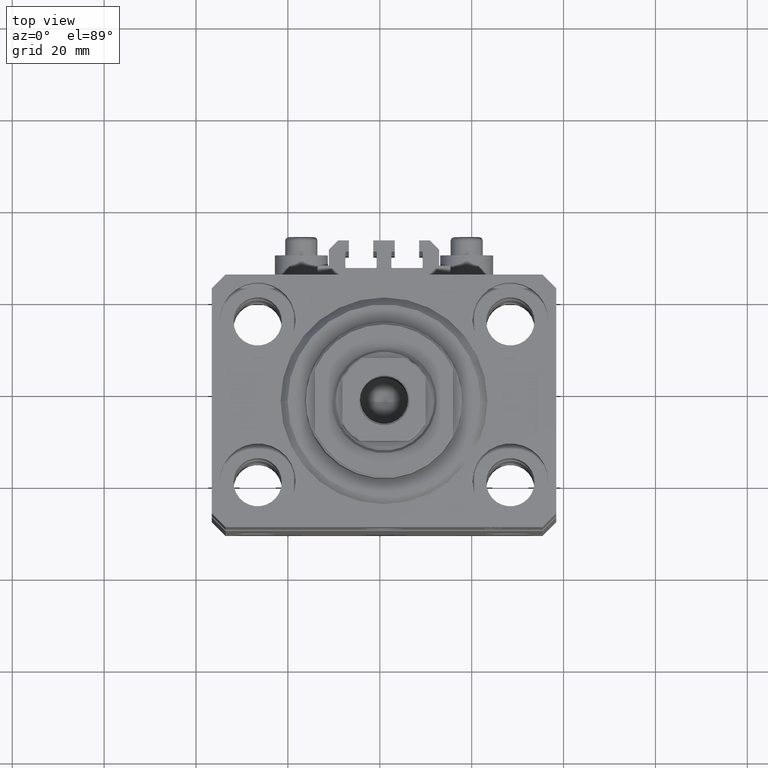
[diagram: clean part render]
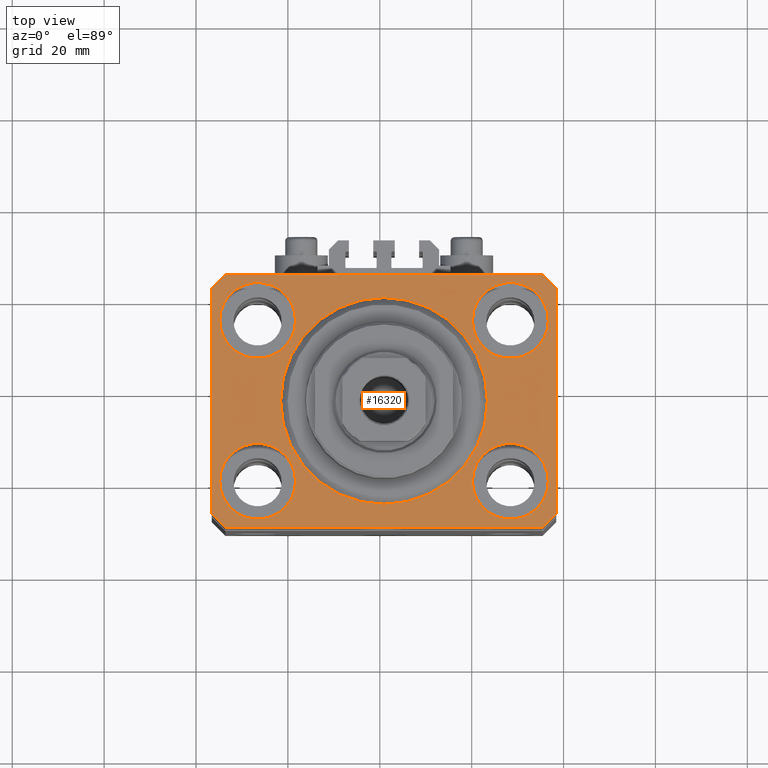
[diagram: same view with one face highlighted and labeled with its STEP entity id]
A machine part, top view. The second image highlights one B-rep face of the part: STEP entity #16320.
In plain terms, the highlighted planar face has unit normal (0, 0, 1).
Its self-contained STEP definition (entity closure, byte-faithful):
#43 = ORIENTED_EDGE ( 'NONE', *, *, #10801, .F. ) ;
#133 = FACE_BOUND ( 'NONE', #24255, .T. ) ;
#310 = CIRCLE ( 'NONE', #23998, 22.50000000000000355 ) ;
#372 = CIRCLE ( 'NONE', #46239, 8.250000000000000000 ) ;
#687 = CARTESIAN_POINT ( 'NONE',  ( 37.49999999999999289, -24.50000000000000000, 0.000000000000000000 ) ) ;
#807 = ORIENTED_EDGE ( 'NONE', *, *, #3184, .T. ) ;
#1087 = VERTEX_POINT ( 'NONE', #35750 ) ;
#1477 = DIRECTION ( 'NONE',  ( 1.000000000000000000, 0.000000000000000000, 0.000000000000000000 ) ) ;
#1620 = CARTESIAN_POINT ( 'NONE',  ( -34.49999999999999289, 27.50000000000000000, 0.000000000000000000 ) ) ;
#1784 = DIRECTION ( 'NONE',  ( 1.000000000000000000, 0.000000000000000000, -0.000000000000000000 ) ) ;
#1968 = CARTESIAN_POINT ( 'NONE',  ( -34.49999999999998579, -27.49999999999999645, 0.000000000000000000 ) ) ;
#2639 = EDGE_CURVE ( 'NONE', #16083, #35182, #23651, .T. ) ;
#3184 = EDGE_CURVE ( 'NONE', #35182, #30547, #38546, .T. ) ;
#3294 = EDGE_CURVE ( 'NONE', #17667, #30914, #11235, .T. ) ;
#3806 = EDGE_CURVE ( 'NONE', #42894, #13451, #46345, .T. ) ;
#4434 = PLANE ( 'NONE',  #20584 ) ;
#4666 = CARTESIAN_POINT ( 'NONE',  ( 0.000000000000000000, 0.000000000000000000, 0.000000000000000000 ) ) ;
#4753 = VECTOR ( 'NONE', #33675, 1000.000000000000114 ) ;
#4828 = CARTESIAN_POINT ( 'NONE',  ( 19.25000000000000000, -17.50000000000000000, 0.000000000000000000 ) ) ;
#4949 = CARTESIAN_POINT ( 'NONE',  ( -22.50000000000000355, 2.755455298081545172E-15, 0.000000000000000000 ) ) ;
#5991 = VERTEX_POINT ( 'NONE', #4949 ) ;
#6275 = ORIENTED_EDGE ( 'NONE', *, *, #30280, .T. ) ;
#6571 = CARTESIAN_POINT ( 'NONE',  ( 37.50000000000051870, 24.49999999999995381, 0.000000000000000000 ) ) ;
#6848 = EDGE_CURVE ( 'NONE', #30865, #17667, #15487, .T. ) ;
#6934 = CARTESIAN_POINT ( 'NONE',  ( 27.49999999999999645, 17.50000000000001066, 0.000000000000000000 ) ) ;
#7143 = DIRECTION ( 'NONE',  ( 0.000000000000000000, 0.000000000000000000, 1.000000000000000000 ) ) ;
#7307 = VERTEX_POINT ( 'NONE', #18105 ) ;
#7397 = AXIS2_PLACEMENT_3D ( 'NONE', #39927, #7143, #21759 ) ;
#7663 = DIRECTION ( 'NONE',  ( 1.000000000000000000, 0.000000000000000000, 0.000000000000000000 ) ) ;
#7887 = CARTESIAN_POINT ( 'NONE',  ( 37.50000000000051870, 24.49999999999995381, 0.000000000000000000 ) ) ;
#8047 = DIRECTION ( 'NONE',  ( 0.000000000000000000, 0.000000000000000000, 1.000000000000000000 ) ) ;
#8124 = LINE ( 'NONE', #7887, #24067 ) ;
#8170 = ORIENTED_EDGE ( 'NONE', *, *, #47006, .F. ) ;
#8413 = DIRECTION ( 'NONE',  ( 0.000000000000000000, 0.000000000000000000, 1.000000000000000000 ) ) ;
#8496 = DIRECTION ( 'NONE',  ( 0.000000000000000000, 0.000000000000000000, 1.000000000000000000 ) ) ;
#8543 = ORIENTED_EDGE ( 'NONE', *, *, #3806, .F. ) ;
#8619 = EDGE_CURVE ( 'NONE', #1087, #30865, #9376, .T. ) ;
#8944 = ORIENTED_EDGE ( 'NONE', *, *, #23138, .F. ) ;
#9039 = DIRECTION ( 'NONE',  ( -0.7071067811865471286, -0.7071067811865479058, 0.000000000000000000 ) ) ;
#9376 = LINE ( 'NONE', #1968, #24135 ) ;
#9819 = DIRECTION ( 'NONE',  ( 1.000000000000000000, 0.000000000000000000, 0.000000000000000000 ) ) ;
#10565 = CARTESIAN_POINT ( 'NONE',  ( -19.25000000000000355, -17.50000000000000000, 0.000000000000000000 ) ) ;
#10719 = CIRCLE ( 'NONE', #13768, 8.250000000000000000 ) ;
#10801 = EDGE_CURVE ( 'NONE', #13451, #42894, #11962, .T. ) ;
#11235 = LINE ( 'NONE', #687, #41719 ) ;
#11367 = VERTEX_POINT ( 'NONE', #10565 ) ;
#11530 = CARTESIAN_POINT ( 'NONE',  ( -27.50000000000000355, 17.50000000000000000, 0.000000000000000000 ) ) ;
#11859 = FACE_OUTER_BOUND ( 'NONE', #26198, .T. ) ;
#11926 = DIRECTION ( 'NONE',  ( 1.000000000000000000, 0.000000000000000000, 0.000000000000000000 ) ) ;
#11942 = DIRECTION ( 'NONE',  ( 1.076236605503979380E-14, 1.000000000000000000, 0.000000000000000000 ) ) ;
#11962 = CIRCLE ( 'NONE', #7397, 8.250000000000000000 ) ;
#12334 = CIRCLE ( 'NONE', #13083, 8.249999999999992895 ) ;
#12604 = DIRECTION ( 'NONE',  ( 1.000000000000000000, 0.000000000000000000, 0.000000000000000000 ) ) ;
#12619 = CARTESIAN_POINT ( 'NONE',  ( -34.49999999999999289, 27.50000000000000000, 0.000000000000000000 ) ) ;
#12729 = CARTESIAN_POINT ( 'NONE',  ( -27.50000000000000355, -17.50000000000000000, 0.000000000000000000 ) ) ;
#13083 = AXIS2_PLACEMENT_3D ( 'NONE', #44183, #8047, #44652 ) ;
#13451 = VERTEX_POINT ( 'NONE', #4828 ) ;
#13696 = CARTESIAN_POINT ( 'NONE',  ( 37.49999999999999289, -24.50000000000000000, 0.000000000000000000 ) ) ;
#13768 = AXIS2_PLACEMENT_3D ( 'NONE', #11530, #8413, #30438 ) ;
#13939 = CARTESIAN_POINT ( 'NONE',  ( -37.49999999999999289, 24.50000000000000000, 0.000000000000000000 ) ) ;
#14010 = CARTESIAN_POINT ( 'NONE',  ( 27.50000000000000355, -17.50000000000000000, 0.000000000000000000 ) ) ;
#14275 = ORIENTED_EDGE ( 'NONE', *, *, #6848, .T. ) ;
#14373 = CARTESIAN_POINT ( 'NONE',  ( -27.50000000000000355, 17.50000000000000000, 0.000000000000000000 ) ) ;
#14606 = CARTESIAN_POINT ( 'NONE',  ( -37.49999999999999289, -24.50000000000000000, 0.000000000000000000 ) ) ;
#14753 = FACE_BOUND ( 'NONE', #23234, .T. ) ;
#15487 = LINE ( 'NONE', #34611, #4753 ) ;
#15894 = ORIENTED_EDGE ( 'NONE', *, *, #8619, .T. ) ;
#16083 = VERTEX_POINT ( 'NONE', #12619 ) ;
#16320 = ADVANCED_FACE ( 'NONE', ( #44639, #32943, #133, #22645, #14753, #11859 ), #4434, .T. ) ;
#16419 = CIRCLE ( 'NONE', #38543, 8.249999999999992895 ) ;
#16530 = VECTOR ( 'NONE', #9039, 1000.000000000000000 ) ;
#17258 = ORIENTED_EDGE ( 'NONE', *, *, #2639, .T. ) ;
#17667 = VERTEX_POINT ( 'NONE', #13696 ) ;
#17879 = EDGE_CURVE ( 'NONE', #44487, #33831, #22933, .T. ) ;
#18105 = CARTESIAN_POINT ( 'NONE',  ( 22.50000000000000355, 0.000000000000000000, 0.000000000000000000 ) ) ;
#18214 = DIRECTION ( 'NONE',  ( 0.000000000000000000, 0.000000000000000000, 1.000000000000000000 ) ) ;
#19178 = VECTOR ( 'NONE', #43789, 1000.000000000000000 ) ;
#20374 = CARTESIAN_POINT ( 'NONE',  ( -37.49999999999999289, 24.50000000000000000, 0.000000000000000000 ) ) ;
#20584 = AXIS2_PLACEMENT_3D ( 'NONE', #4666, #8496, #1784 ) ;
#20944 = CARTESIAN_POINT ( 'NONE',  ( 34.49999999999999289, -27.49999999999999645, 0.000000000000000000 ) ) ;
#21664 = VECTOR ( 'NONE', #34641, 1000.000000000000000 ) ;
#21728 = ORIENTED_EDGE ( 'NONE', *, *, #44634, .F. ) ;
#21738 = CIRCLE ( 'NONE', #43881, 8.250000000000000000 ) ;
#21759 = DIRECTION ( 'NONE',  ( 1.000000000000000000, 0.000000000000000000, 0.000000000000000000 ) ) ;
#21912 = CARTESIAN_POINT ( 'NONE',  ( 35.75000000000000711, -17.50000000000000000, 0.000000000000000000 ) ) ;
#21968 = ORIENTED_EDGE ( 'NONE', *, *, #3294, .T. ) ;
#22206 = EDGE_CURVE ( 'NONE', #33831, #44487, #10719, .T. ) ;
#22500 = VERTEX_POINT ( 'NONE', #45428 ) ;
#22645 = FACE_BOUND ( 'NONE', #33628, .T. ) ;
#22933 = CIRCLE ( 'NONE', #25974, 8.250000000000000000 ) ;
#23138 = EDGE_CURVE ( 'NONE', #5991, #7307, #40557, .T. ) ;
#23149 = DIRECTION ( 'NONE',  ( 0.000000000000000000, 0.000000000000000000, 1.000000000000000000 ) ) ;
#23162 = EDGE_CURVE ( 'NONE', #30547, #1087, #44036, .T. ) ;
#23234 = EDGE_LOOP ( 'NONE', ( #21728, #8944 ) ) ;
#23651 = LINE ( 'NONE', #1620, #16530 ) ;
#23998 = AXIS2_PLACEMENT_3D ( 'NONE', #26970, #23149, #12604 ) ;
#24067 = VECTOR ( 'NONE', #33499, 1000.000000000000114 ) ;
#24135 = VECTOR ( 'NONE', #38118, 1000.000000000000000 ) ;
#24255 = EDGE_LOOP ( 'NONE', ( #35426, #37747 ) ) ;
#24292 = CARTESIAN_POINT ( 'NONE',  ( -35.75000000000000711, -17.50000000000000000, 0.000000000000000000 ) ) ;
#25020 = DIRECTION ( 'NONE',  ( 1.000000000000000000, 0.000000000000000000, 0.000000000000000000 ) ) ;
#25974 = AXIS2_PLACEMENT_3D ( 'NONE', #14373, #18214, #7663 ) ;
#26198 = EDGE_LOOP ( 'NONE', ( #6275, #17258, #807, #38275, #15894, #14275, #21968, #37730 ) ) ;
#26268 = ORIENTED_EDGE ( 'NONE', *, *, #31799, .F. ) ;
#26970 = CARTESIAN_POINT ( 'NONE',  ( 0.000000000000000000, 0.000000000000000000, 0.000000000000000000 ) ) ;
#27971 = CARTESIAN_POINT ( 'NONE',  ( -19.25000000000000355, 17.50000000000000000, 0.000000000000000000 ) ) ;
#28039 = DIRECTION ( 'NONE',  ( 0.000000000000000000, 0.000000000000000000, 1.000000000000000000 ) ) ;
#28606 = DIRECTION ( 'NONE',  ( 0.000000000000000000, 0.000000000000000000, 1.000000000000000000 ) ) ;
#28749 = VECTOR ( 'NONE', #38309, 1000.000000000000000 ) ;
#28973 = DIRECTION ( 'NONE',  ( 0.000000000000000000, 0.000000000000000000, 1.000000000000000000 ) ) ;
#29589 = CARTESIAN_POINT ( 'NONE',  ( -37.49999999999999289, -24.50000000000000000, 0.000000000000000000 ) ) ;
#29705 = VERTEX_POINT ( 'NONE', #34995 ) ;
#30280 = EDGE_CURVE ( 'NONE', #29705, #16083, #31282, .T. ) ;
#30438 = DIRECTION ( 'NONE',  ( 1.000000000000000000, 0.000000000000000000, 0.000000000000000000 ) ) ;
#30547 = VERTEX_POINT ( 'NONE', #29589 ) ;
#30865 = VERTEX_POINT ( 'NONE', #20944 ) ;
#30914 = VERTEX_POINT ( 'NONE', #6571 ) ;
#31282 = LINE ( 'NONE', #42271, #21664 ) ;
#31799 = EDGE_CURVE ( 'NONE', #11367, #38154, #21738, .T. ) ;
#32807 = CARTESIAN_POINT ( 'NONE',  ( 0.000000000000000000, 0.000000000000000000, 0.000000000000000000 ) ) ;
#32943 = FACE_BOUND ( 'NONE', #46915, .T. ) ;
#33499 = DIRECTION ( 'NONE',  ( -0.7071067811865356934, 0.7071067811865594521, 0.000000000000000000 ) ) ;
#33628 = EDGE_LOOP ( 'NONE', ( #39564, #39873 ) ) ;
#33675 = DIRECTION ( 'NONE',  ( 0.7071067811865474617, 0.7071067811865474617, 0.000000000000000000 ) ) ;
#33831 = VERTEX_POINT ( 'NONE', #44085 ) ;
#34252 = EDGE_CURVE ( 'NONE', #30914, #29705, #8124, .T. ) ;
#34611 = CARTESIAN_POINT ( 'NONE',  ( 34.49999999999999289, -27.49999999999999645, 0.000000000000000000 ) ) ;
#34641 = DIRECTION ( 'NONE',  ( -1.000000000000000000, 0.000000000000000000, 0.000000000000000000 ) ) ;
#34902 = EDGE_CURVE ( 'NONE', #40738, #22500, #12334, .T. ) ;
#34995 = CARTESIAN_POINT ( 'NONE',  ( 34.50000000000056843, 27.50000000000000000, 0.000000000000000000 ) ) ;
#35182 = VERTEX_POINT ( 'NONE', #13939 ) ;
#35426 = ORIENTED_EDGE ( 'NONE', *, *, #46139, .F. ) ;
#35750 = CARTESIAN_POINT ( 'NONE',  ( -34.49999999999998579, -27.49999999999999645, 0.000000000000000000 ) ) ;
#36377 = DIRECTION ( 'NONE',  ( 0.000000000000000000, 0.000000000000000000, 1.000000000000000000 ) ) ;
#37515 = AXIS2_PLACEMENT_3D ( 'NONE', #32807, #28973, #11926 ) ;
#37730 = ORIENTED_EDGE ( 'NONE', *, *, #34252, .T. ) ;
#37747 = ORIENTED_EDGE ( 'NONE', *, *, #34902, .F. ) ;
#38118 = DIRECTION ( 'NONE',  ( 1.000000000000000000, 0.000000000000000000, 0.000000000000000000 ) ) ;
#38154 = VERTEX_POINT ( 'NONE', #24292 ) ;
#38275 = ORIENTED_EDGE ( 'NONE', *, *, #23162, .T. ) ;
#38309 = DIRECTION ( 'NONE',  ( 0.000000000000000000, -1.000000000000000000, 0.000000000000000000 ) ) ;
#38543 = AXIS2_PLACEMENT_3D ( 'NONE', #6934, #36377, #44477 ) ;
#38546 = LINE ( 'NONE', #20374, #28749 ) ;
#39564 = ORIENTED_EDGE ( 'NONE', *, *, #17879, .F. ) ;
#39657 = CARTESIAN_POINT ( 'NONE',  ( 19.25000000000000000, 17.50000000000001066, 0.000000000000000000 ) ) ;
#39873 = ORIENTED_EDGE ( 'NONE', *, *, #22206, .F. ) ;
#39927 = CARTESIAN_POINT ( 'NONE',  ( 27.50000000000000355, -17.50000000000000000, 0.000000000000000000 ) ) ;
#40557 = CIRCLE ( 'NONE', #37515, 22.50000000000000355 ) ;
#40738 = VERTEX_POINT ( 'NONE', #39657 ) ;
#41719 = VECTOR ( 'NONE', #11942, 1000.000000000000000 ) ;
#42271 = CARTESIAN_POINT ( 'NONE',  ( 34.50000000000056843, 27.50000000000000000, 0.000000000000000000 ) ) ;
#42750 = EDGE_LOOP ( 'NONE', ( #26268, #8170 ) ) ;
#42894 = VERTEX_POINT ( 'NONE', #21912 ) ;
#43074 = CARTESIAN_POINT ( 'NONE',  ( -27.50000000000000355, -17.50000000000000000, 0.000000000000000000 ) ) ;
#43539 = DIRECTION ( 'NONE',  ( 0.000000000000000000, 0.000000000000000000, 1.000000000000000000 ) ) ;
#43789 = DIRECTION ( 'NONE',  ( 0.7071067811865483499, -0.7071067811865466846, 0.000000000000000000 ) ) ;
#43881 = AXIS2_PLACEMENT_3D ( 'NONE', #12729, #28039, #1477 ) ;
#44036 = LINE ( 'NONE', #14606, #19178 ) ;
#44085 = CARTESIAN_POINT ( 'NONE',  ( -35.75000000000000711, 17.50000000000000000, 0.000000000000000000 ) ) ;
#44183 = CARTESIAN_POINT ( 'NONE',  ( 27.49999999999999645, 17.50000000000001066, 0.000000000000000000 ) ) ;
#44477 = DIRECTION ( 'NONE',  ( 1.000000000000000000, 0.000000000000000000, 0.000000000000000000 ) ) ;
#44487 = VERTEX_POINT ( 'NONE', #27971 ) ;
#44634 = EDGE_CURVE ( 'NONE', #7307, #5991, #310, .T. ) ;
#44639 = FACE_BOUND ( 'NONE', #42750, .T. ) ;
#44652 = DIRECTION ( 'NONE',  ( 1.000000000000000000, 0.000000000000000000, 0.000000000000000000 ) ) ;
#45428 = CARTESIAN_POINT ( 'NONE',  ( 35.74999999999999289, 17.50000000000001066, 0.000000000000000000 ) ) ;
#46139 = EDGE_CURVE ( 'NONE', #22500, #40738, #16419, .T. ) ;
#46239 = AXIS2_PLACEMENT_3D ( 'NONE', #43074, #43539, #9819 ) ;
#46309 = AXIS2_PLACEMENT_3D ( 'NONE', #14010, #28606, #25020 ) ;
#46345 = CIRCLE ( 'NONE', #46309, 8.250000000000000000 ) ;
#46915 = EDGE_LOOP ( 'NONE', ( #8543, #43 ) ) ;
#47006 = EDGE_CURVE ( 'NONE', #38154, #11367, #372, .T. ) ;